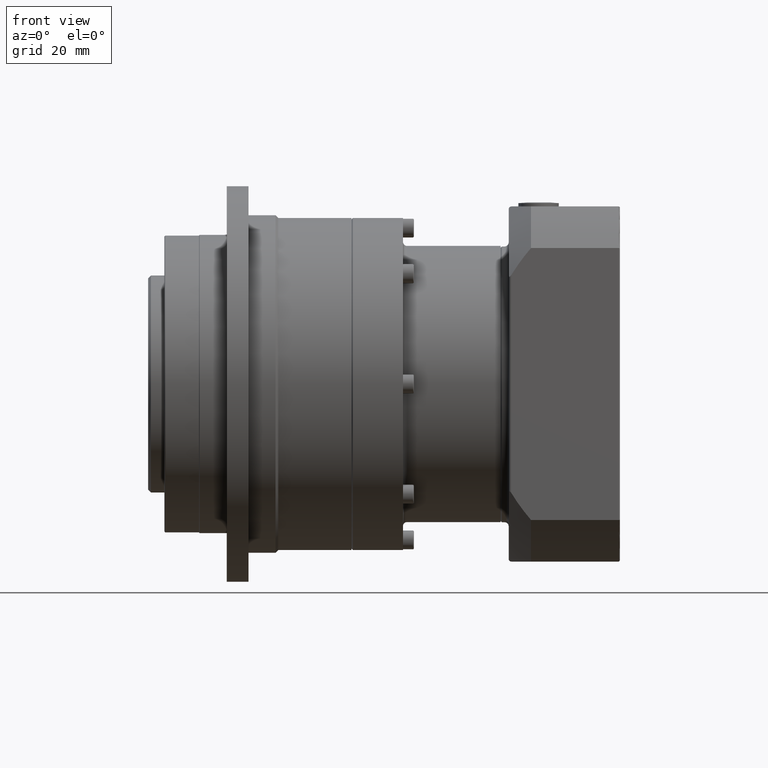
[diagram: clean part render]
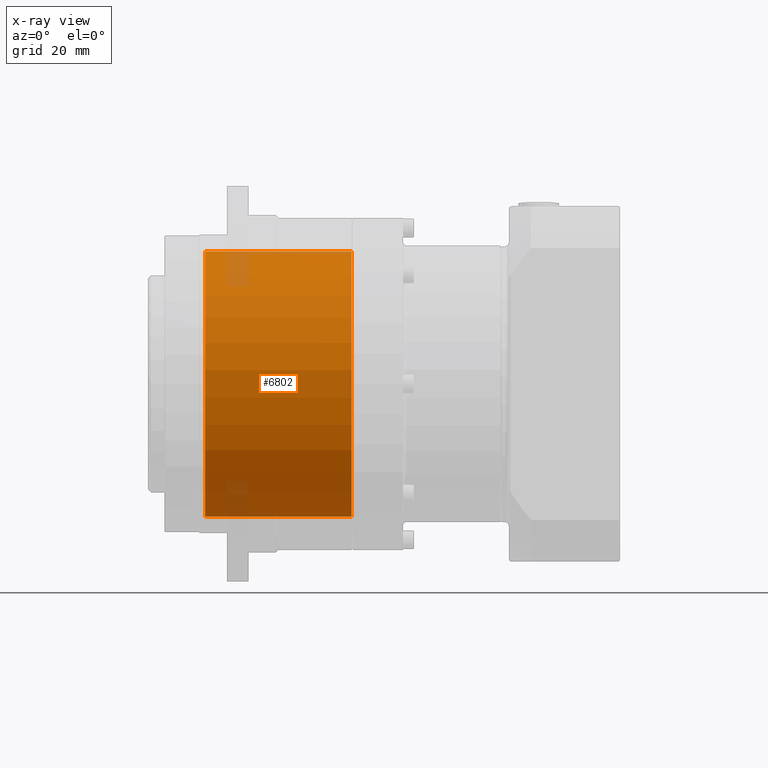
[diagram: x-ray — body ghosted, one internal face saturated and labeled with its STEP entity id]
A machine part, front view, then the same camera in x-ray: the body is ghosted and one INTERNAL B-rep face — a face not visible from any outside direction — is saturated and labeled: STEP entity #6802.
In plain terms, the highlighted cylindrical surface (bore or boss wall) has radius 48.875 mm, axis along (-1, -0, -0).
Its self-contained STEP definition (entity closure, byte-faithful):
#1355=FACE_BOUND('',#2607,.T.);
#1830=FACE_OUTER_BOUND('',#2606,.T.);
#2606=EDGE_LOOP('',(#5834));
#2607=EDGE_LOOP('',(#5835));
#2966=CIRCLE('',#7653,48.875);
#2973=CIRCLE('',#7667,48.875);
#3563=VERTEX_POINT('',#11960);
#3570=VERTEX_POINT('',#11981);
#4320=EDGE_CURVE('',#3563,#3563,#2966,.T.);
#4327=EDGE_CURVE('',#3570,#3570,#2973,.T.);
#5834=ORIENTED_EDGE('',*,*,#4327,.F.);
#5835=ORIENTED_EDGE('',*,*,#4320,.F.);
#5982=CYLINDRICAL_SURFACE('',#7666,48.875);
#6802=ADVANCED_FACE('',(#1830,#1355),#5982,.F.);
#7653=AXIS2_PLACEMENT_3D('',#11961,#9578,#9579);
#7666=AXIS2_PLACEMENT_3D('',#11980,#9604,#9605);
#7667=AXIS2_PLACEMENT_3D('',#11982,#9606,#9607);
#9578=DIRECTION('center_axis',(-1.,-1.66533453688182E-16,-1.09105421218123E-14));
#9579=DIRECTION('ref_axis',(-1.09105421218239E-14,7.00103800415781E-11,
1.));
#9604=DIRECTION('center_axis',(-1.,-1.66533453688182E-16,-1.09105421218123E-14));
#9605=DIRECTION('ref_axis',(-1.09105421218239E-14,7.00103800415781E-11,
1.));
#9606=DIRECTION('center_axis',(1.,1.66533453688182E-16,1.09105421218123E-14));
#9607=DIRECTION('ref_axis',(-1.09105421218239E-14,7.00103800415781E-11,
1.));
#11960=CARTESIAN_POINT('',(-21.6916274838064,-82.516858634924,24.6241007412621));
#11961=CARTESIAN_POINT('Origin',(-21.6916274838069,-82.5168586315023,73.4991007412621));
#11980=CARTESIAN_POINT('Origin',(-21.6916274838069,-82.5168586315023,73.4991007412621));
#11981=CARTESIAN_POINT('',(-75.6916274838064,-82.516858634924,24.6241007412615));
#11982=CARTESIAN_POINT('Origin',(-75.6916274838069,-82.5168586315023,73.4991007412615));